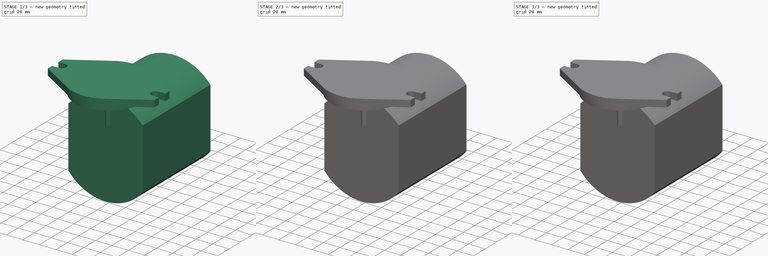
[diagram: build sequence overview — one tinted view per stage of 3, left to right]
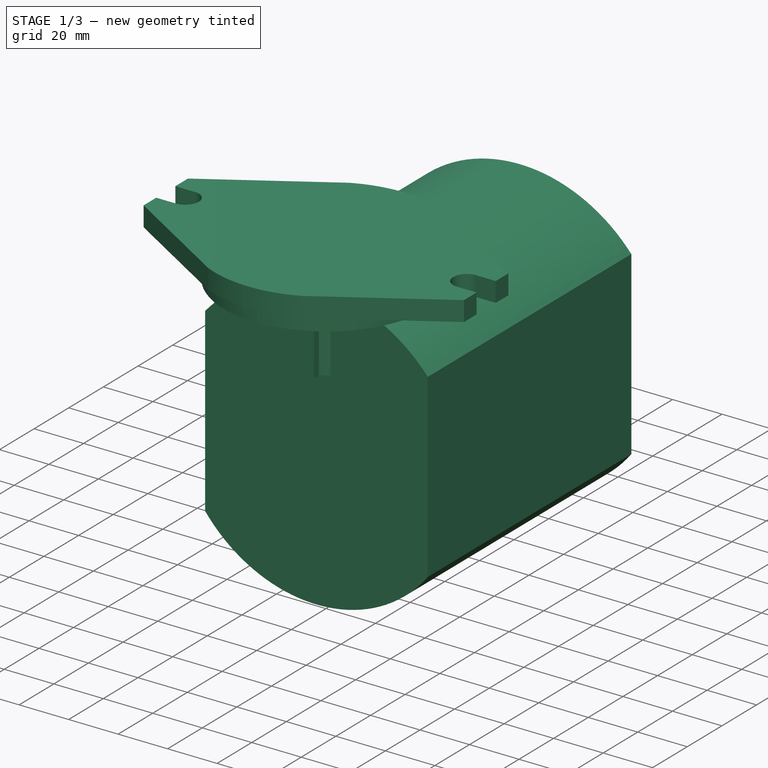
[diagram: stage 1 of 3 — iso view after this stage's code; geometry added in this stage tinted green]
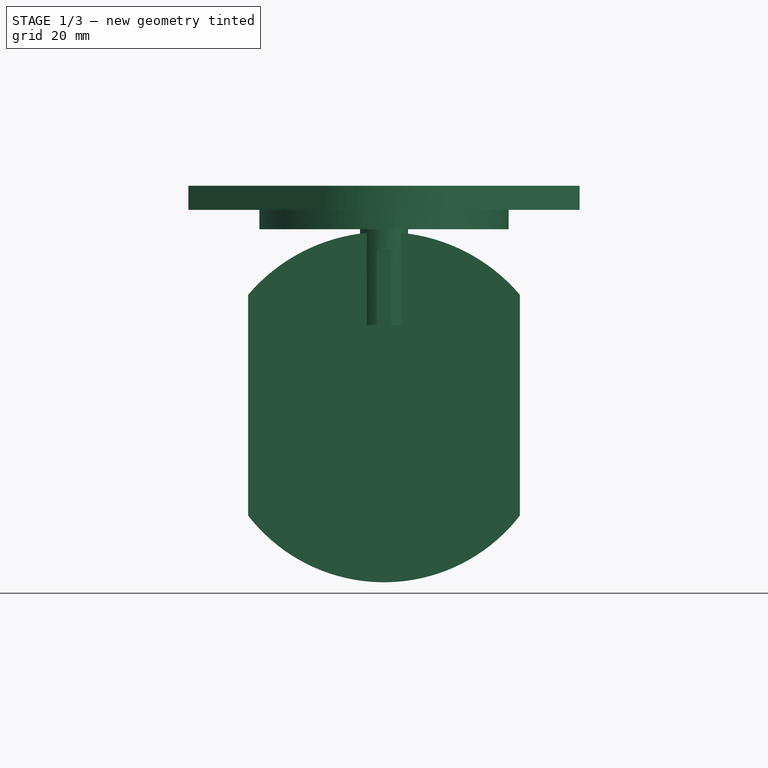
[diagram: stage 1 of 3 — front view after this stage's code; geometry added in this stage tinted green]
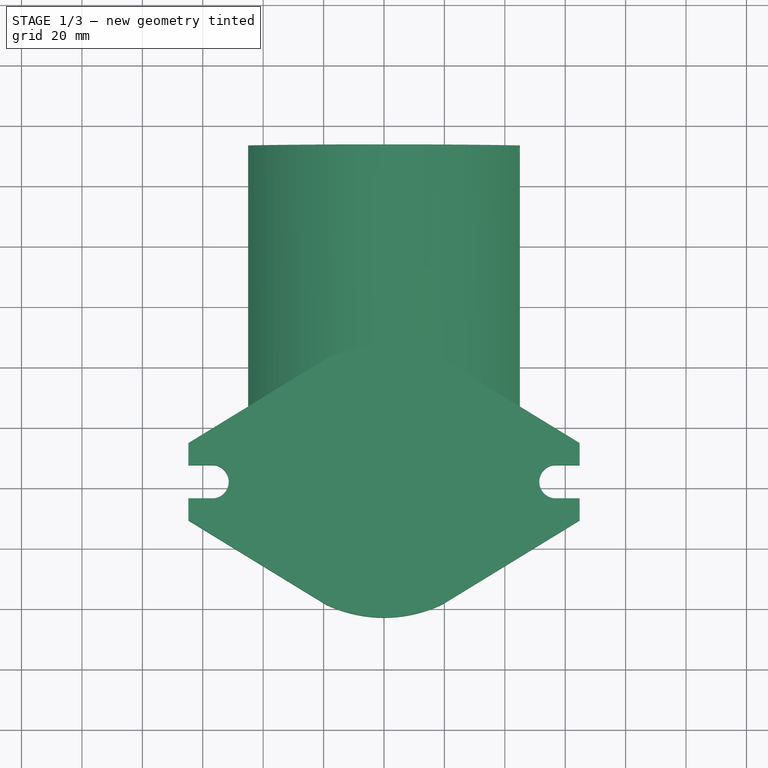
[diagram: stage 1 of 3 — top view after this stage's code; geometry added in this stage tinted green]
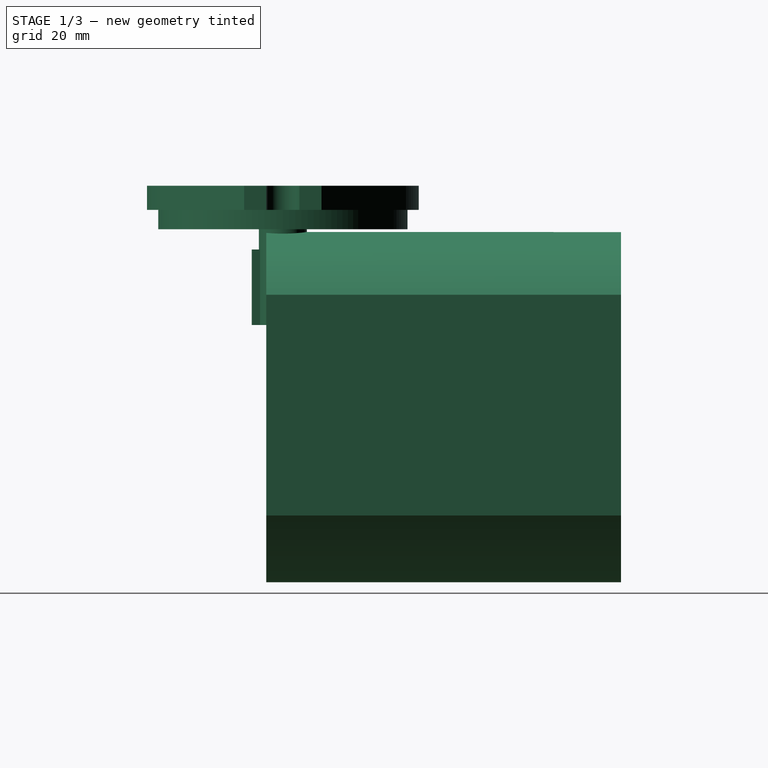
[diagram: stage 1 of 3 — right view after this stage's code; geometry added in this stage tinted green]
FCSTD DOCUMENT  (FreeCAD 0.16R6712 (Git))
Label: hydraulic pump Eaton 0.92 cu
License: All rights reserved
LicenseURL: http://en.wikipedia.org/wiki/All_rights_reserved
objects: Sketcher::SketchObject×7, PartDesign::Pad×5, PartDesign::Pocket×1
note: 19 computed .brp shape members not serialized (recipe doc carries the construction recipe); baked Part::Feature solids carry a one-line shape summary decoded from their .brp

FEATURE [Sketcher::SketchObject] Sketch003  label="SAE A 2 bolt pattern"
  Placement = pos=(0,-5.50947,0) rot=(1,0,0;1.5708rad)
  sketch-geometry (18):
    g0: LineSegment StartX=-64.75 StartY=12.8078 StartZ=0 EndX=-64.75 EndY=5.55 EndZ=0
    g1: LineSegment StartX=64.75 StartY=12.8078 StartZ=0 EndX=64.75 EndY=5.55 EndZ=0
    g2: Circle [constr] CenterX=0 CenterY=0 CenterZ=0 NormalX=0 NormalY=0 NormalZ=1 Radius=45
    g3: LineSegment StartX=-64.75 StartY=12.8078 StartZ=0 EndX=-19.05 EndY=40.7688 EndZ=0
    g4: LineSegment StartX=19.05 StartY=40.7688 StartZ=0 EndX=64.75 EndY=12.8078 EndZ=0
    g5: ArcOfCircle CenterX=0 CenterY=0 CenterZ=0 NormalX=0 NormalY=0 NormalZ=1 Radius=45 StartAngle=1.13367 EndAngle=2.00792
    g6: LineSegment StartX=19.05 StartY=-40.7688 StartZ=0 EndX=64.75 EndY=-12.8078 EndZ=0
    g7: LineSegment StartX=-64.75 StartY=-12.8078 StartZ=0 EndX=-19.05 EndY=-40.7688 EndZ=0
    g8: ArcOfCircle CenterX=0 CenterY=0 CenterZ=0 NormalX=0 NormalY=0 NormalZ=1 Radius=45 StartAngle=4.27527 EndAngle=5.14951
    g9: LineSegment StartX=-64.75 StartY=5.55 StartZ=0 EndX=-53.2024 EndY=5.55 EndZ=0
    g10: LineSegment StartX=-64.75 StartY=-5.55 StartZ=0 EndX=-53.2024 EndY=-5.55 EndZ=0
    g11: LineSegment StartX=53.2024 StartY=5.55 StartZ=0 EndX=64.75 EndY=5.55 EndZ=0
    g12: LineSegment StartX=53.2024 StartY=-5.55 StartZ=0 EndX=64.75 EndY=-5.55 EndZ=0
    g13: LineSegment StartX=-64.75 StartY=-5.55 StartZ=0 EndX=-64.75 EndY=-12.8078 EndZ=0
    g14: LineSegment StartX=64.75 StartY=-5.55 StartZ=0 EndX=64.75 EndY=-12.8078 EndZ=0
    g15: ArcOfCircle CenterX=-53.2 CenterY=0 CenterZ=0 NormalX=0 NormalY=0 NormalZ=1 Radius=5.55 StartAngle=4.71196 EndAngle=7.85441
    g16: ArcOfCircle CenterX=53.2 CenterY=0 CenterZ=0 NormalX=0 NormalY=0 NormalZ=1 Radius=5.55 StartAngle=1.57037 EndAngle=4.71281
    g17: Circle [constr] CenterX=0 CenterY=0 CenterZ=0 NormalX=0 NormalY=0 NormalZ=1 Radius=53.2
  constraints (56):
    c: Coincident(g2,g-1)
    c: Coincident(g5,g-1)
    c: Coincident(g5,g3)
    c: Coincident(g5,g4)
    c: PointOnObject(g4,g2)
    c: PointOnObject(g7,g2)
    c: Coincident(g8,g-1)
    c: Coincident(g8,g7)
    c: Coincident(g8,g6)
    c: Equal(g7,g6)
    c: Equal(g6,g4)
    c: Equal(g4,g3)
    c: Parallel(g3,g6)
    c: Parallel(g4,g7)
    c: Symmetric(g13,g0,g-1)
    c: Radius(g2) = 45
    c: Symmetric(g4,g3,g-2)
    c: Symmetric(g6,g7,g-2)
    c: Coincident(g7,g13)
    c: Coincident(g3,g0)
    c: Coincident(g4,g1)
    c: DistanceX(g7,g6) = 38.1
    c: Symmetric(g4,g6,g-1)
    c: Symmetric(g3,g7,g-1)
    c: DistanceX(g14) = 64.75
    c: Horizontal(g9)
    c: Horizontal(g10)
    c: Equal(g9,g10)
    c: Horizontal(g11)
    c: Horizontal(g12)
    c: Coincident(g13,g10)
    c: Tangent(g0,g13)
    c: Coincident(g1,g11)
    c: Coincident(g14,g12)
    c: Tangent(g1,g14)
    c: Symmetric(g12,g1,g-1)
    c: Coincident(g15,g9)
    c: Coincident(g15,g10)
    c: Radius(g15) = 5.55
    c: Coincident(g16,g11)
    c: Coincident(g16,g12)
    c: Equal(g16,g15)
    c: Coincident(g9,g0)
    c: Equal(g9,g10)
    c: Equal(g10,g11)
    c: Equal(g11,g12)
    c: Coincident(g17,g-1)
    c: Radius(g17) = 53.2
    c: PointOnObject(g16,g17)
    c: PointOnObject(g15,g17)
    c: DistanceY(g10,g0) = 11.1
    c: Symmetric(g0,g12,g-1)
    c: DistanceY(g0,g0) = 7.25782
    c: Equal(g0,g1)
    c: Equal(g1,g14)
    c: Equal(g14,g13)
FEATURE [PartDesign::Pad] Pad003  label="SAE A 2 Bolt Flange"
  Length = 8
  Length2 = 100
  Sketch = -> Sketch003
  Type = 0
FEATURE [Sketcher::SketchObject] Sketch004  label="body"
  Placement = pos=(0,-5.50947,0) rot=(0,0.707107,0.707107;3.14159rad)
  Support = -> Pad003 [Face20]
  sketch-geometry (6):
    g0: LineSegment StartX=-45 StartY=10 StartZ=0 EndX=-45 EndY=-63.072 EndZ=0
    g1: LineSegment StartX=45 StartY=10 StartZ=0 EndX=45 EndY=-63.072 EndZ=0
    g2: Circle [constr] CenterX=0 CenterY=0 CenterZ=0 NormalX=0 NormalY=0 NormalZ=1 Radius=45
    g3: LineSegment [constr] StartX=0 StartY=-85.175 StartZ=0 EndX=0 EndY=45 EndZ=0
    g4: ArcOfCircle CenterX=0 CenterY=-28.3153 CenterZ=0 NormalX=0 NormalY=0 NormalZ=1 Radius=59.1021 StartAngle=0.705335 EndAngle=2.43626
    g5: ArcOfCircle CenterX=0 CenterY=-28.3153 CenterZ=0 NormalX=0 NormalY=0 NormalZ=1 Radius=56.8597 StartAngle=3.79926 EndAngle=5.62552
  constraints (19):
    c: Vertical(g0)
    c: Vertical(g1)
    c: Equal(g0,g1)
    c: Coincident(g2,g-1)
    c: Radius(g2) = 45
    c: Tangent(g0,g2)
    c: Tangent(g1,g2)
    c: Vertical(g3)
    c: PointOnObject(g3,g2)
    c: PointOnObject(g3,g-2)
    c: DistanceY(g-1,g0) = 10
    c: DistanceY(g3,g3) = 130.175
    c: DistanceY(g1,g1) = 73.072
    c: Coincident(g4,g1)
    c: Coincident(g4,g0)
    c: Coincident(g5,g1)
    c: Coincident(g5,g0)
    c: PointOnObject(g3,g5)
    c: Coincident(g5,g4)  'arc centers'
FEATURE [PartDesign::Pad] Pad004  label="pump"
  Length = 117.475
  Length2 = 100
  Sketch = -> Sketch004
  Type = 0
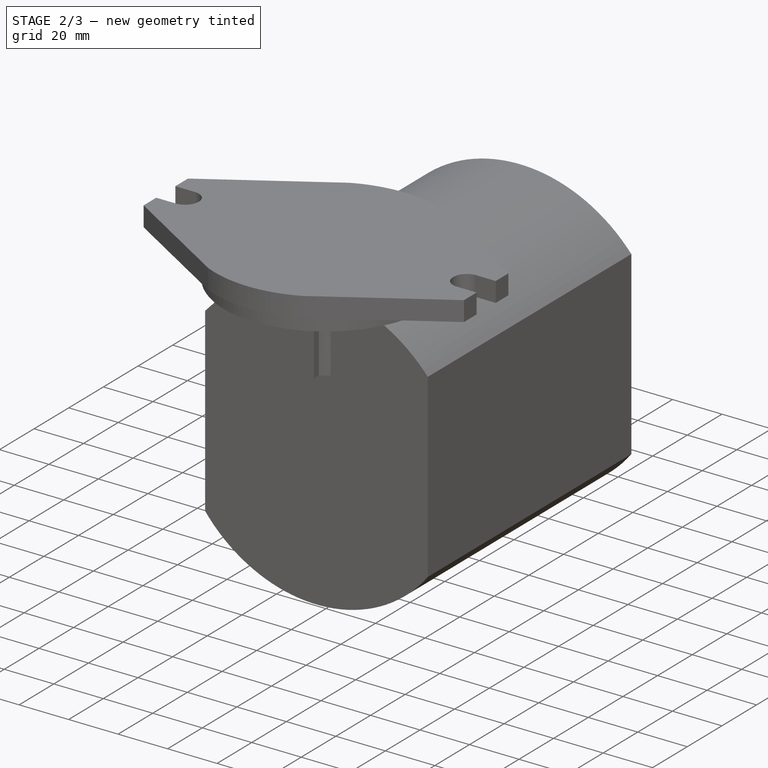
[diagram: stage 2 of 3 — iso view after this stage's code; geometry added in this stage tinted green]
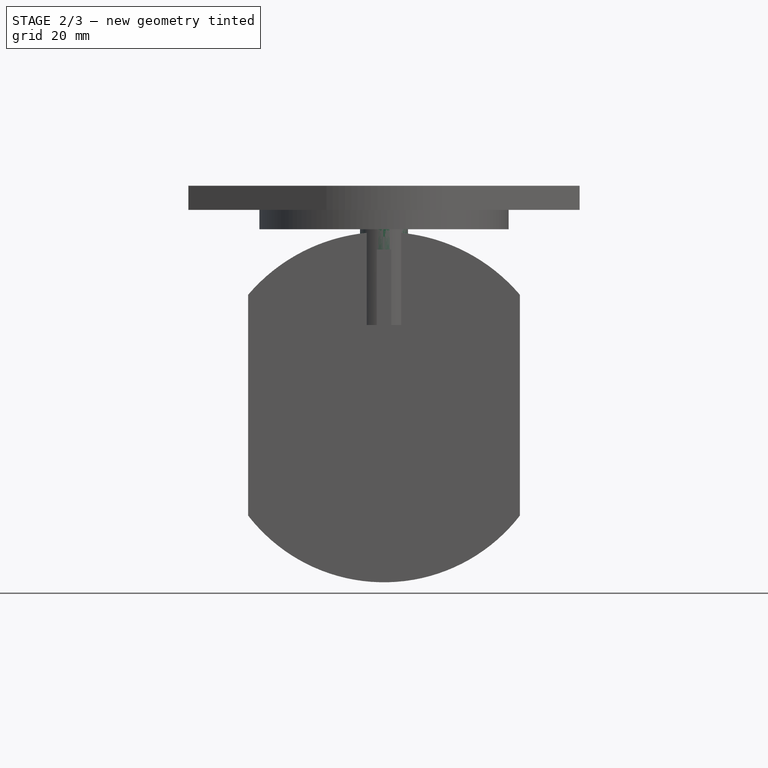
[diagram: stage 2 of 3 — front view after this stage's code; geometry added in this stage tinted green]
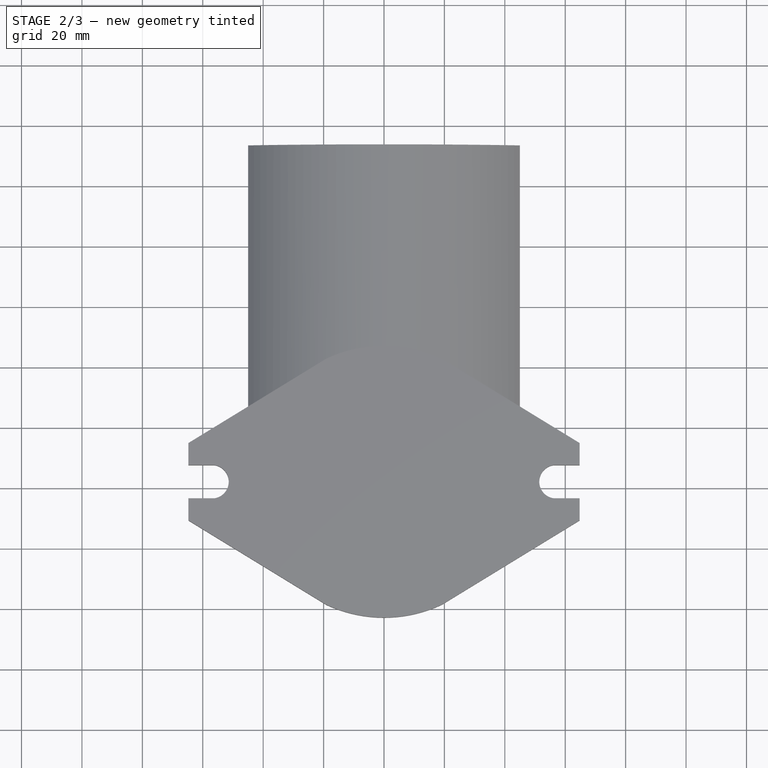
[diagram: stage 2 of 3 — top view after this stage's code; geometry added in this stage tinted green]
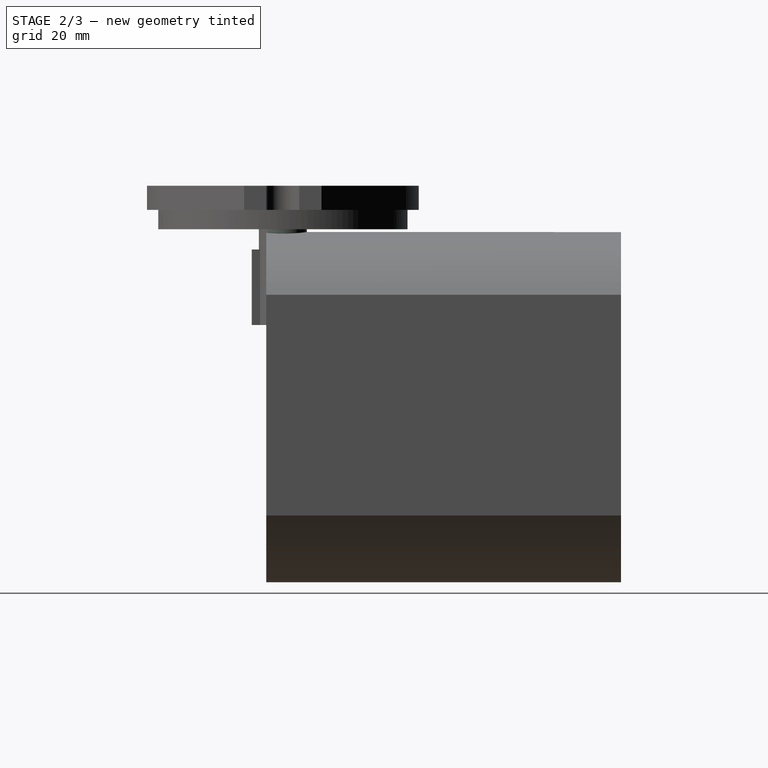
[diagram: stage 2 of 3 — right view after this stage's code; geometry added in this stage tinted green]
FEATURE [Sketcher::SketchObject] Sketch  label="Round Shaft"
  sketch-geometry (1):
    g0: Circle CenterX=0 CenterY=0 CenterZ=0 NormalX=0 NormalY=0 NormalZ=1 Radius=7.9375
  constraints (2):
    c: Coincident(g0,g-1)
    c: Radius(g0) = 7.9375
FEATURE [PartDesign::Pad] Pad  label="Shaft rod"
  Length = 31.7
  Length2 = 100
  Sketch = -> Sketch
  Type = 0
FEATURE [Sketcher::SketchObject] Sketch005
  ExternalGeometry = -> [Pad004]
  Placement = pos=(0,5.50947,0) rot=(1,0,0;1.5708rad)
  Support = -> Pad004 [Face22]
  sketch-geometry (1):
    g0: Circle CenterX=26.536 CenterY=104.838 CenterZ=0 NormalX=0 NormalY=0 NormalZ=1 Radius=11.1125
  constraints (1):
    c: Radius(g0) = 11.1125  'Outlet SAE 10'
FEATURE [PartDesign::Pocket] Pocket  label="Outlet SAE 10"
  Length = 12.7
  Sketch = -> Sketch005
  Type = 0
FEATURE [Sketcher::SketchObject] Sketch006
  ExternalGeometry = -> [Pocket]
  Placement = pos=(45,0,0) rot=(0.57735,0.57735,0.57735;2.0944rad)
  Support = -> Pocket [Face24]
  sketch-geometry (1):
    g0: Circle CenterX=-26.536 CenterY=104.838 CenterZ=0 NormalX=0 NormalY=0 NormalZ=1 Radius=16.6687
  constraints (2):
    c: Symmetric(g-4,g-3,g0)
    c: Radius(g0) = 16.6687  'Inlet SAE 16'
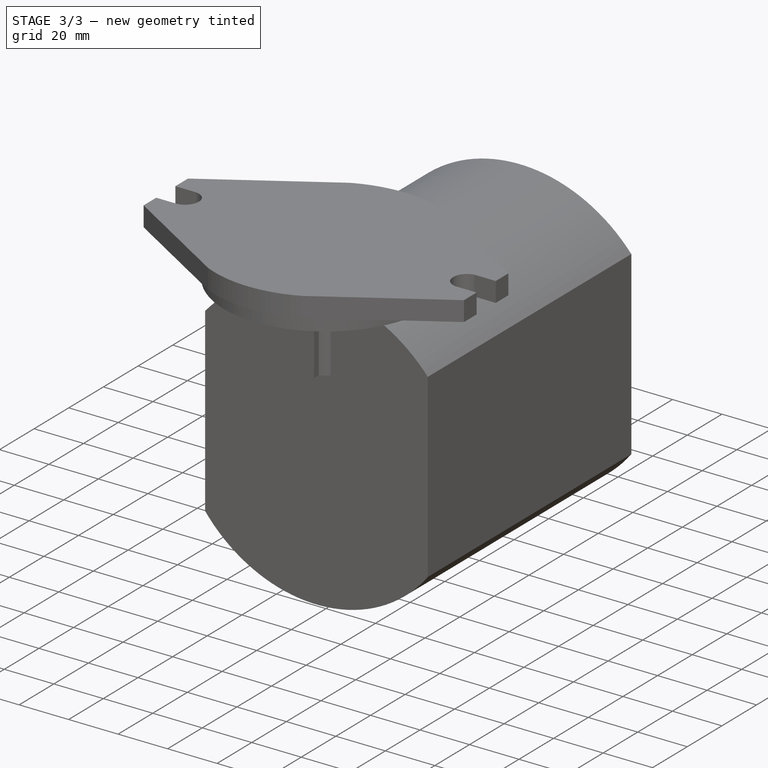
[diagram: stage 3 of 3 — iso view after this stage's code; geometry added in this stage tinted green]
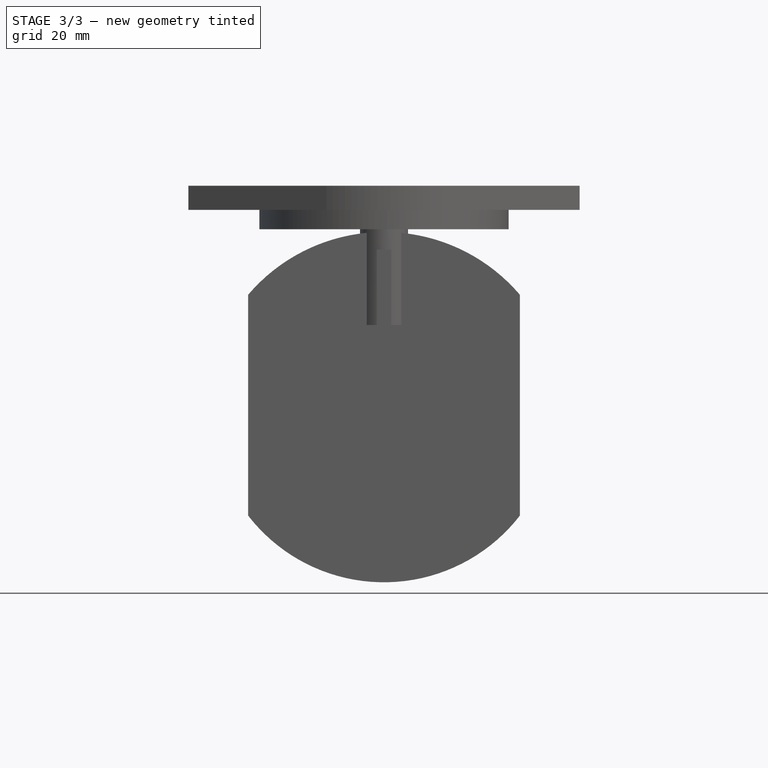
[diagram: stage 3 of 3 — front view after this stage's code; geometry added in this stage tinted green]
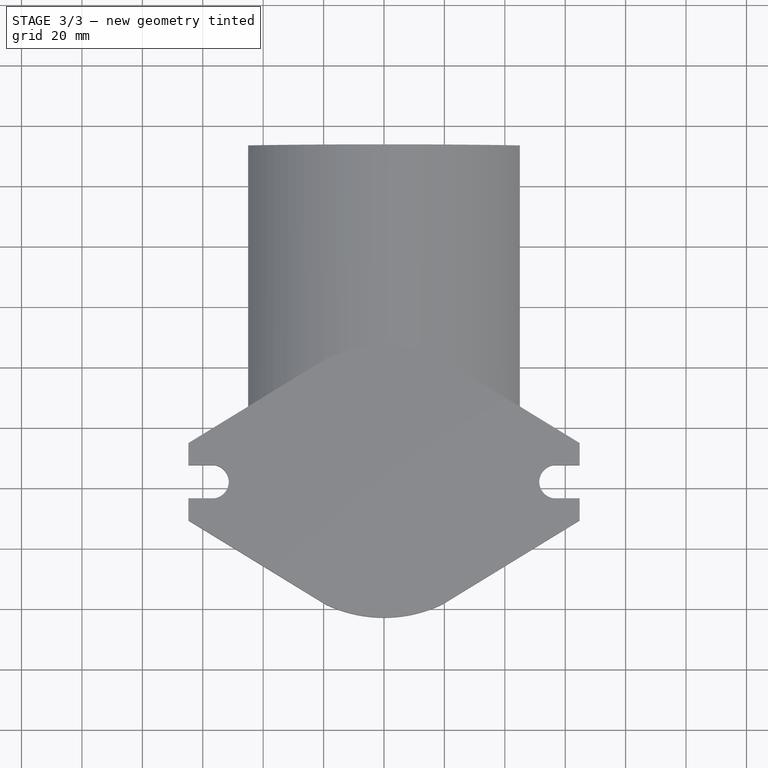
[diagram: stage 3 of 3 — top view after this stage's code; geometry added in this stage tinted green]
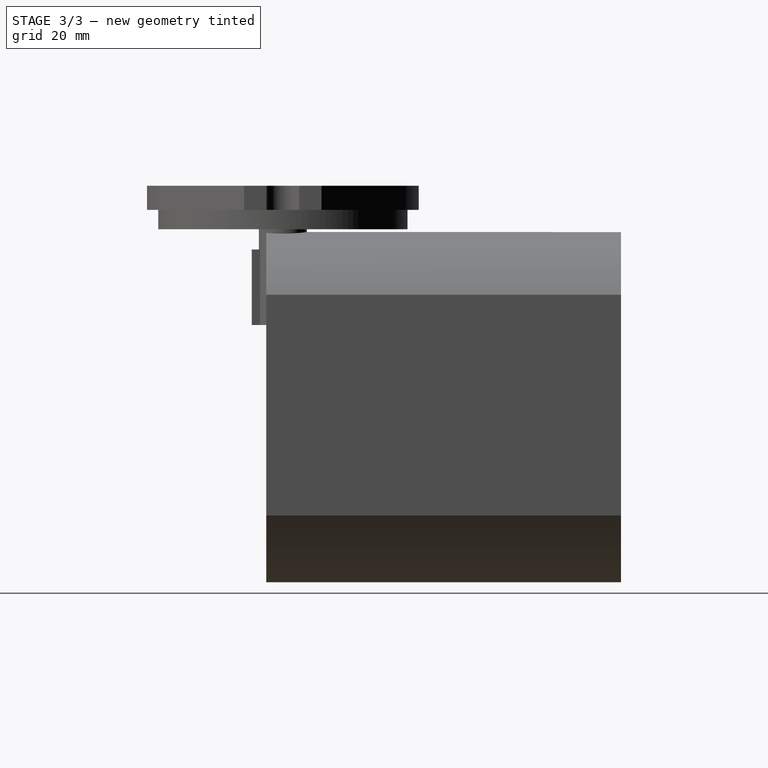
[diagram: stage 3 of 3 — right view after this stage's code; geometry added in this stage tinted green]
FEATURE [Sketcher::SketchObject] Sketch001  label="Key way"
  ExternalGeometry = -> [Pad]
  Placement = pos=(0,0,0) rot=(1,0,0;3.14159rad)
  Support = -> Pad [Face2]
  sketch-geometry (6):
    g0: LineSegment StartX=-2.38 StartY=10.3175 StartZ=0 EndX=2.38 EndY=10.3175 EndZ=0
    g1: LineSegment StartX=2.38 StartY=10.3175 StartZ=0 EndX=2.38 EndY=5.5575 EndZ=0
    g2: LineSegment StartX=2.38 StartY=5.5575 StartZ=0 EndX=-2.38 EndY=5.5575 EndZ=0
    g3: LineSegment StartX=-2.38 StartY=5.5575 StartZ=0 EndX=-2.38 EndY=10.3175 EndZ=0
    g4: LineSegment [constr] StartX=0 StartY=7.9375 StartZ=0 EndX=-2.38 EndY=7.9375 EndZ=0
    g5: LineSegment [constr] StartX=0 StartY=7.9375 StartZ=0 EndX=2.38 EndY=7.9375 EndZ=0
  constraints (20):
    c: Coincident(g0,g1)
    c: Coincident(g1,g2)
    c: Coincident(g2,g3)
    c: Coincident(g3,g0)
    c: Horizontal(g0)
    c: Horizontal(g2)
    c: Vertical(g1)
    c: Equal(g0,g3)
    c: Equal(g3,g2)
    c: Equal(g2,g1)
    c: DistanceY(g3,g3) = 4.76  'Shaft Key way'
    c: Symmetric(g2,g1,g-2)  'Constraint12'
    c: PointOnObject(g4,g-3)
    c: Horizontal(g4)
    c: Coincident(g5,g4)
    c: Horizontal(g5)
    c: Equal(g4,g5)
    c: PointOnObject(g4,g3)
    c: PointOnObject(g5,g1)
    c: Symmetric(g0,g2,g4)
FEATURE [PartDesign::Pad] Pad001  label="Keyed shaft"
  Length = 25
  Length2 = 100
  Reversed = true
  Sketch = -> Sketch001
  Type = 0
FEATURE [Sketcher::SketchObject] Sketch002  label="Face01"
  Placement = pos=(0,0,31.7) rot=(0,0,1;0rad)
  Support = -> Pad001 [Face1]
  sketch-geometry (1):
    g0: Circle CenterX=0 CenterY=0 CenterZ=0 NormalX=0 NormalY=0 NormalZ=1 Radius=41.275
  constraints (2):
    c: Coincident(g0,g-1)
    c: Radius(g0) = 41.275
FEATURE [PartDesign::Pad] Pad002  label="Face plate"
  Length = 6.4
  Length2 = 100
  Sketch = -> Sketch002
  Type = 0
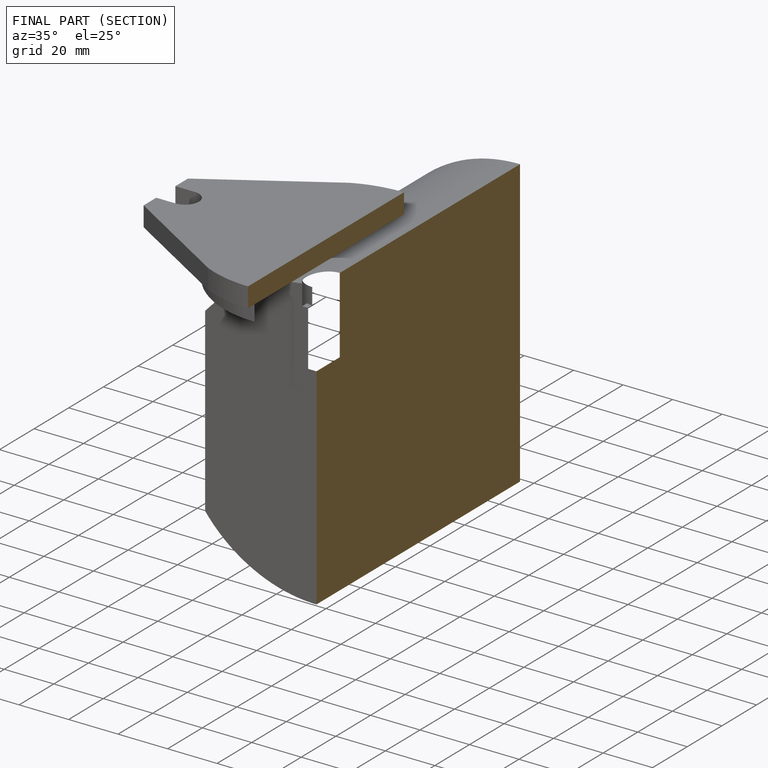
[diagram: finished part — half-section view (interior)]
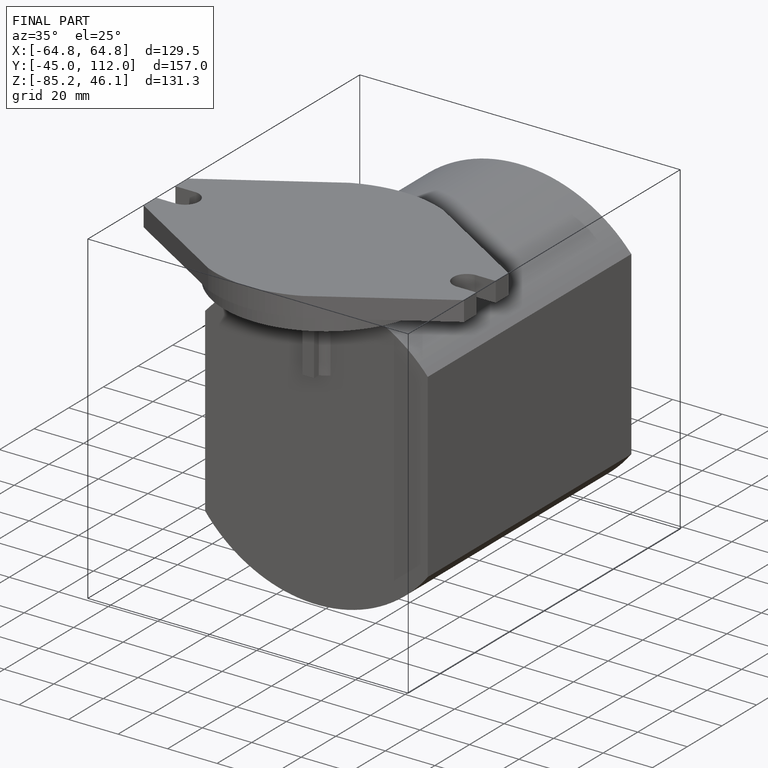
[diagram: finished part — iso view with bounding-box wireframe]
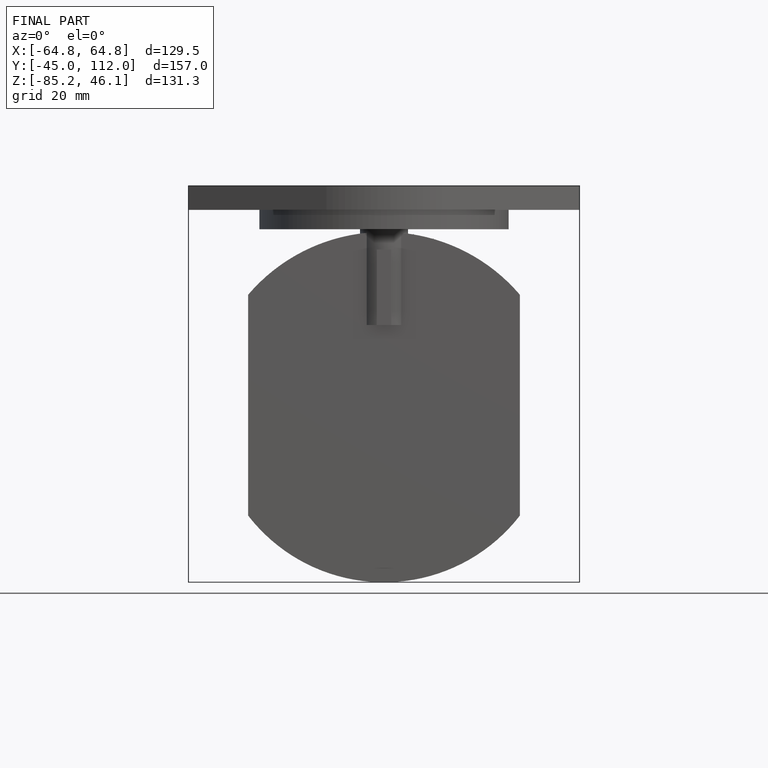
[diagram: finished part — front view with bounding-box wireframe]
